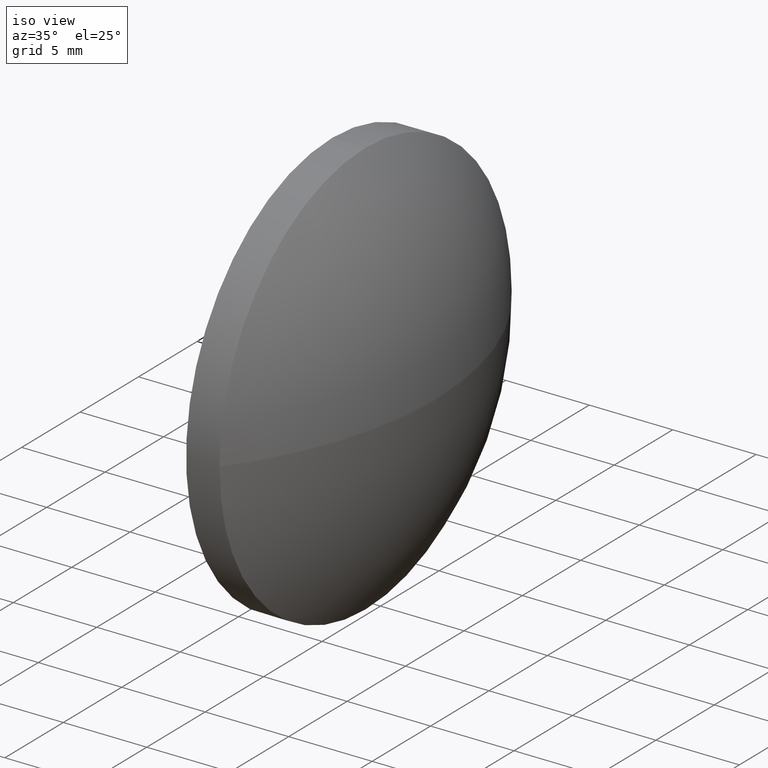
[diagram: clean part render]
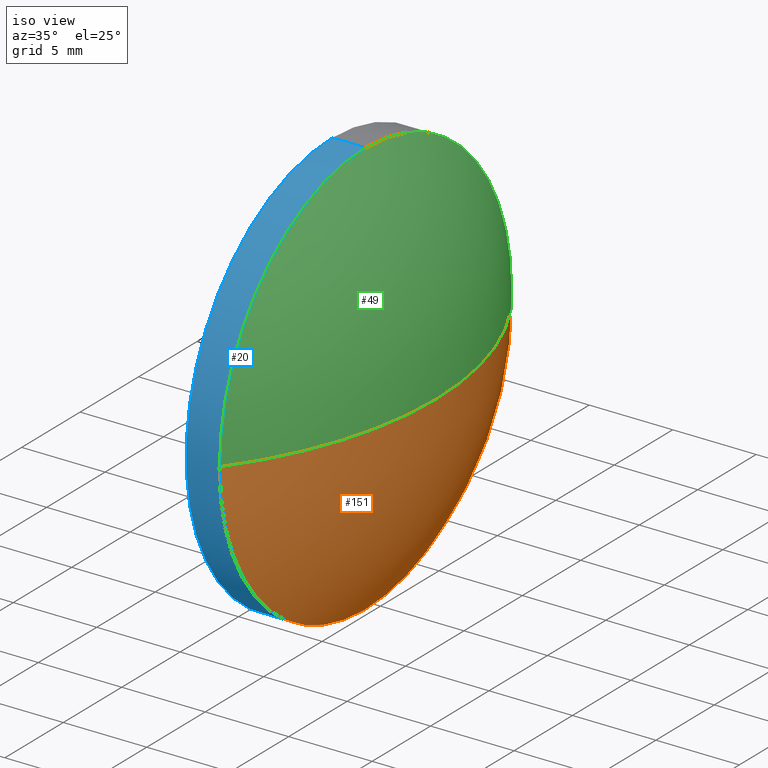
[diagram: same view with three faces highlighted in distinct colors, each labeled with its STEP entity id]
A machine part, iso view with three faces highlighted in distinct colors.
Their STEP definitions:

[orange] entity #151 — the highlighted spherical surface has radius 20.662 mm.
#1 = DIRECTION ( 'NONE',  ( 0.0000000000000000000, 1.000000000000000000, 0.0000000000000000000 ) ) ;
#3 = EDGE_CURVE ( 'NONE', #55, #159, #17, .T. ) ;
#5 = ORIENTED_EDGE ( 'NONE', *, *, #8, .F. ) ;
#6 = DIRECTION ( 'NONE',  ( 0.0000000000000000000, 0.0000000000000000000, 1.000000000000000000 ) ) ;
#8 = EDGE_CURVE ( 'NONE', #159, #35, #19, .T. ) ;
#9 = DIRECTION ( 'NONE',  ( -0.0000000000000000000, 0.0000000000000000000, 1.000000000000000000 ) ) ;
#10 = DIRECTION ( 'NONE',  ( 0.0000000000000000000, 1.224646799147353200E-016, -1.000000000000000000 ) ) ;
#14 = VERTEX_POINT ( 'NONE', #83 ) ;
#16 = AXIS2_PLACEMENT_3D ( 'NONE', #47, #99, #6 ) ;
#17 = CIRCLE ( 'NONE', #116, 12.50000000000001100 ) ;
#19 = CIRCLE ( 'NONE', #16, 12.50000000000001100 ) ;
#26 = CARTESIAN_POINT ( 'NONE',  ( 580.2815510819143600, 288.3208065953607500, 0.0000000000000000000 ) ) ;
#32 = SPHERICAL_SURFACE ( 'NONE', #95, 20.66200712589071000 ) ;
#35 = VERTEX_POINT ( 'NONE', #39 ) ;
#39 = CARTESIAN_POINT ( 'NONE',  ( 580.2815510819143600, 275.8208065953607500, -1.530808498934194300E-015 ) ) ;
#47 = CARTESIAN_POINT ( 'NONE',  ( 580.2815510819143600, 288.3208065953607500, 0.0000000000000000000 ) ) ;
#50 = CARTESIAN_POINT ( 'NONE',  ( 563.8295439560237100, 288.3208065953607500, 0.0000000000000000000 ) ) ;
#55 = VERTEX_POINT ( 'NONE', #142 ) ;
#60 = EDGE_CURVE ( 'NONE', #14, #35, #71, .T. ) ;
#62 = EDGE_LOOP ( 'NONE', ( #110, #103, #5, #86 ) ) ;
#63 = FACE_OUTER_BOUND ( 'NONE', #62, .T. ) ;
#69 = AXIS2_PLACEMENT_3D ( 'NONE', #183, #9, #118 ) ;
#71 = CIRCLE ( 'NONE', #113, 20.66200712589072500 ) ;
#72 = DIRECTION ( 'NONE',  ( -0.0000000000000000000, 0.0000000000000000000, -1.000000000000000000 ) ) ;
#78 = DIRECTION ( 'NONE',  ( -1.000000000000000000, -0.0000000000000000000, -0.0000000000000000000 ) ) ;
#83 = CARTESIAN_POINT ( 'NONE',  ( 584.4915510819143900, 288.3208065953607500, 0.0000000000000000000 ) ) ;
#86 = ORIENTED_EDGE ( 'NONE', *, *, #3, .F. ) ;
#95 = AXIS2_PLACEMENT_3D ( 'NONE', #157, #72, #1 ) ;
#99 = DIRECTION ( 'NONE',  ( -1.000000000000000000, -0.0000000000000000000, -0.0000000000000000000 ) ) ;
#103 = ORIENTED_EDGE ( 'NONE', *, *, #60, .T. ) ;
#110 = ORIENTED_EDGE ( 'NONE', *, *, #160, .F. ) ;
#113 = AXIS2_PLACEMENT_3D ( 'NONE', #50, #10, #154 ) ;
#114 = DIRECTION ( 'NONE',  ( 0.0000000000000000000, 0.0000000000000000000, 1.000000000000000000 ) ) ;
#116 = AXIS2_PLACEMENT_3D ( 'NONE', #26, #78, #114 ) ;
#118 = DIRECTION ( 'NONE',  ( 1.000000000000000000, 0.0000000000000000000, 0.0000000000000000000 ) ) ;
#130 = CARTESIAN_POINT ( 'NONE',  ( 580.2815510819143600, 288.3208065953607500, -12.50000000000001100 ) ) ;
#135 = CIRCLE ( 'NONE', #69, 20.66200712589072500 ) ;
#142 = CARTESIAN_POINT ( 'NONE',  ( 580.2815510819143600, 300.8208065953607500, 0.0000000000000000000 ) ) ;
#151 = ADVANCED_FACE ( 'NONE', ( #63 ), #32, .T. ) ;
#154 = DIRECTION ( 'NONE',  ( 0.0000000000000000000, 1.000000000000000000, 1.224646799147352500E-016 ) ) ;
#157 = CARTESIAN_POINT ( 'NONE',  ( 563.8295439560237100, 288.3208065953607500, 0.0000000000000000000 ) ) ;
#159 = VERTEX_POINT ( 'NONE', #130 ) ;
#160 = EDGE_CURVE ( 'NONE', #14, #55, #135, .T. ) ;
#183 = CARTESIAN_POINT ( 'NONE',  ( 563.8295439560237100, 288.3208065953607500, 0.0000000000000000000 ) ) ;

[blue] entity #20 — the highlighted cylindrical surface (partial cylindrical patch) has radius 12.5 mm, axis along (-1, -0, -0).
#6 = DIRECTION ( 'NONE',  ( 0.0000000000000000000, 0.0000000000000000000, 1.000000000000000000 ) ) ;
#8 = EDGE_CURVE ( 'NONE', #159, #35, #19, .T. ) ;
#12 = ORIENTED_EDGE ( 'NONE', *, *, #27, .F. ) ;
#13 = CARTESIAN_POINT ( 'NONE',  ( 575.7766020623414500, 288.3208065953607500, -12.50000000000001100 ) ) ;
#16 = AXIS2_PLACEMENT_3D ( 'NONE', #47, #99, #6 ) ;
#19 = CIRCLE ( 'NONE', #16, 12.50000000000001100 ) ;
#20 = ADVANCED_FACE ( 'NONE', ( #59 ), #56, .T. ) ;
#23 = EDGE_LOOP ( 'NONE', ( #12, #166, #58, #133, #148 ) ) ;
#24 = VECTOR ( 'NONE', #137, 1000.000000000000000 ) ;
#27 = EDGE_CURVE ( 'NONE', #159, #124, #173, .T. ) ;
#33 = DIRECTION ( 'NONE',  ( -1.000000000000000000, -0.0000000000000000000, -0.0000000000000000000 ) ) ;
#34 = CARTESIAN_POINT ( 'NONE',  ( 578.2815510819143600, 288.3208065953607500, -12.50000000000001100 ) ) ;
#35 = VERTEX_POINT ( 'NONE', #39 ) ;
#37 = AXIS2_PLACEMENT_3D ( 'NONE', #85, #127, #136 ) ;
#39 = CARTESIAN_POINT ( 'NONE',  ( 580.2815510819143600, 275.8208065953607500, -1.530808498934194300E-015 ) ) ;
#46 = CARTESIAN_POINT ( 'NONE',  ( 580.2815510819143600, 288.3208065953607500, 0.0000000000000000000 ) ) ;
#47 = CARTESIAN_POINT ( 'NONE',  ( 580.2815510819143600, 288.3208065953607500, 0.0000000000000000000 ) ) ;
#56 = CYLINDRICAL_SURFACE ( 'NONE', #37, 12.50000000000001100 ) ;
#58 = ORIENTED_EDGE ( 'NONE', *, *, #125, .T. ) ;
#59 = FACE_OUTER_BOUND ( 'NONE', #23, .T. ) ;
#65 = DIRECTION ( 'NONE',  ( -1.000000000000000000, -0.0000000000000000000, -0.0000000000000000000 ) ) ;
#84 = DIRECTION ( 'NONE',  ( 0.0000000000000000000, 0.0000000000000000000, 1.000000000000000000 ) ) ;
#85 = CARTESIAN_POINT ( 'NONE',  ( 575.7766020623414500, 288.3208065953607500, 0.0000000000000000000 ) ) ;
#98 = CARTESIAN_POINT ( 'NONE',  ( 575.7766020623414500, 288.3208065953607500, 12.50000000000001100 ) ) ;
#99 = DIRECTION ( 'NONE',  ( -1.000000000000000000, -0.0000000000000000000, -0.0000000000000000000 ) ) ;
#106 = EDGE_CURVE ( 'NONE', #124, #122, #176, .T. ) ;
#117 = DIRECTION ( 'NONE',  ( -1.000000000000000000, -0.0000000000000000000, -0.0000000000000000000 ) ) ;
#119 = LINE ( 'NONE', #98, #24 ) ;
#122 = VERTEX_POINT ( 'NONE', #128 ) ;
#123 = AXIS2_PLACEMENT_3D ( 'NONE', #46, #65, #84 ) ;
#124 = VERTEX_POINT ( 'NONE', #34 ) ;
#125 = EDGE_CURVE ( 'NONE', #35, #146, #150, .T. ) ;
#126 = CARTESIAN_POINT ( 'NONE',  ( 578.2815510819143600, 288.3208065953607500, 0.0000000000000000000 ) ) ;
#127 = DIRECTION ( 'NONE',  ( -1.000000000000000000, -0.0000000000000000000, -0.0000000000000000000 ) ) ;
#128 = CARTESIAN_POINT ( 'NONE',  ( 578.2815510819143600, 288.3208065953607500, 12.50000000000001100 ) ) ;
#130 = CARTESIAN_POINT ( 'NONE',  ( 580.2815510819143600, 288.3208065953607500, -12.50000000000001100 ) ) ;
#131 = EDGE_CURVE ( 'NONE', #146, #122, #119, .T. ) ;
#133 = ORIENTED_EDGE ( 'NONE', *, *, #131, .T. ) ;
#136 = DIRECTION ( 'NONE',  ( 0.0000000000000000000, 0.0000000000000000000, 1.000000000000000000 ) ) ;
#137 = DIRECTION ( 'NONE',  ( -1.000000000000000000, -0.0000000000000000000, -0.0000000000000000000 ) ) ;
#146 = VERTEX_POINT ( 'NONE', #163 ) ;
#148 = ORIENTED_EDGE ( 'NONE', *, *, #106, .F. ) ;
#150 = CIRCLE ( 'NONE', #123, 12.50000000000001100 ) ;
#159 = VERTEX_POINT ( 'NONE', #130 ) ;
#162 = DIRECTION ( 'NONE',  ( 0.0000000000000000000, 0.0000000000000000000, 1.000000000000000000 ) ) ;
#163 = CARTESIAN_POINT ( 'NONE',  ( 580.2815510819143600, 288.3208065953607500, 12.50000000000001100 ) ) ;
#166 = ORIENTED_EDGE ( 'NONE', *, *, #8, .T. ) ;
#168 = VECTOR ( 'NONE', #117, 1000.000000000000000 ) ;
#173 = LINE ( 'NONE', #13, #168 ) ;
#174 = AXIS2_PLACEMENT_3D ( 'NONE', #126, #33, #162 ) ;
#176 = CIRCLE ( 'NONE', #174, 12.50000000000001100 ) ;

[green] entity #49 — the highlighted spherical surface has radius 20.662 mm.
#2 = ORIENTED_EDGE ( 'NONE', *, *, #138, .F. ) ;
#9 = DIRECTION ( 'NONE',  ( -0.0000000000000000000, 0.0000000000000000000, 1.000000000000000000 ) ) ;
#10 = DIRECTION ( 'NONE',  ( 0.0000000000000000000, 1.224646799147353200E-016, -1.000000000000000000 ) ) ;
#14 = VERTEX_POINT ( 'NONE', #83 ) ;
#21 = CARTESIAN_POINT ( 'NONE',  ( 563.8295439560237100, 288.3208065953607500, 0.0000000000000000000 ) ) ;
#22 = DIRECTION ( 'NONE',  ( 0.0000000000000000000, 0.0000000000000000000, 1.000000000000000000 ) ) ;
#30 = ORIENTED_EDGE ( 'NONE', *, *, #60, .F. ) ;
#35 = VERTEX_POINT ( 'NONE', #39 ) ;
#36 = DIRECTION ( 'NONE',  ( 0.0000000000000000000, 1.000000000000000000, 0.0000000000000000000 ) ) ;
#39 = CARTESIAN_POINT ( 'NONE',  ( 580.2815510819143600, 275.8208065953607500, -1.530808498934194300E-015 ) ) ;
#46 = CARTESIAN_POINT ( 'NONE',  ( 580.2815510819143600, 288.3208065953607500, 0.0000000000000000000 ) ) ;
#49 = ADVANCED_FACE ( 'NONE', ( #74 ), #172, .T. ) ;
#50 = CARTESIAN_POINT ( 'NONE',  ( 563.8295439560237100, 288.3208065953607500, 0.0000000000000000000 ) ) ;
#55 = VERTEX_POINT ( 'NONE', #142 ) ;
#60 = EDGE_CURVE ( 'NONE', #14, #35, #71, .T. ) ;
#65 = DIRECTION ( 'NONE',  ( -1.000000000000000000, -0.0000000000000000000, -0.0000000000000000000 ) ) ;
#69 = AXIS2_PLACEMENT_3D ( 'NONE', #183, #9, #118 ) ;
#71 = CIRCLE ( 'NONE', #113, 20.66200712589072500 ) ;
#74 = FACE_OUTER_BOUND ( 'NONE', #79, .T. ) ;
#79 = EDGE_LOOP ( 'NONE', ( #30, #171, #2, #112 ) ) ;
#81 = AXIS2_PLACEMENT_3D ( 'NONE', #21, #89, #36 ) ;
#83 = CARTESIAN_POINT ( 'NONE',  ( 584.4915510819143900, 288.3208065953607500, 0.0000000000000000000 ) ) ;
#84 = DIRECTION ( 'NONE',  ( 0.0000000000000000000, 0.0000000000000000000, 1.000000000000000000 ) ) ;
#89 = DIRECTION ( 'NONE',  ( -0.0000000000000000000, 0.0000000000000000000, -1.000000000000000000 ) ) ;
#108 = CIRCLE ( 'NONE', #129, 12.50000000000001100 ) ;
#112 = ORIENTED_EDGE ( 'NONE', *, *, #125, .F. ) ;
#113 = AXIS2_PLACEMENT_3D ( 'NONE', #50, #10, #154 ) ;
#118 = DIRECTION ( 'NONE',  ( 1.000000000000000000, 0.0000000000000000000, 0.0000000000000000000 ) ) ;
#123 = AXIS2_PLACEMENT_3D ( 'NONE', #46, #65, #84 ) ;
#125 = EDGE_CURVE ( 'NONE', #35, #146, #150, .T. ) ;
#129 = AXIS2_PLACEMENT_3D ( 'NONE', #139, #184, #22 ) ;
#135 = CIRCLE ( 'NONE', #69, 20.66200712589072500 ) ;
#138 = EDGE_CURVE ( 'NONE', #146, #55, #108, .T. ) ;
#139 = CARTESIAN_POINT ( 'NONE',  ( 580.2815510819143600, 288.3208065953607500, 0.0000000000000000000 ) ) ;
#142 = CARTESIAN_POINT ( 'NONE',  ( 580.2815510819143600, 300.8208065953607500, 0.0000000000000000000 ) ) ;
#146 = VERTEX_POINT ( 'NONE', #163 ) ;
#150 = CIRCLE ( 'NONE', #123, 12.50000000000001100 ) ;
#154 = DIRECTION ( 'NONE',  ( 0.0000000000000000000, 1.000000000000000000, 1.224646799147352500E-016 ) ) ;
#160 = EDGE_CURVE ( 'NONE', #14, #55, #135, .T. ) ;
#163 = CARTESIAN_POINT ( 'NONE',  ( 580.2815510819143600, 288.3208065953607500, 12.50000000000001100 ) ) ;
#171 = ORIENTED_EDGE ( 'NONE', *, *, #160, .T. ) ;
#172 = SPHERICAL_SURFACE ( 'NONE', #81, 20.66200712589071000 ) ;
#183 = CARTESIAN_POINT ( 'NONE',  ( 563.8295439560237100, 288.3208065953607500, 0.0000000000000000000 ) ) ;
#184 = DIRECTION ( 'NONE',  ( -1.000000000000000000, -0.0000000000000000000, -0.0000000000000000000 ) ) ;